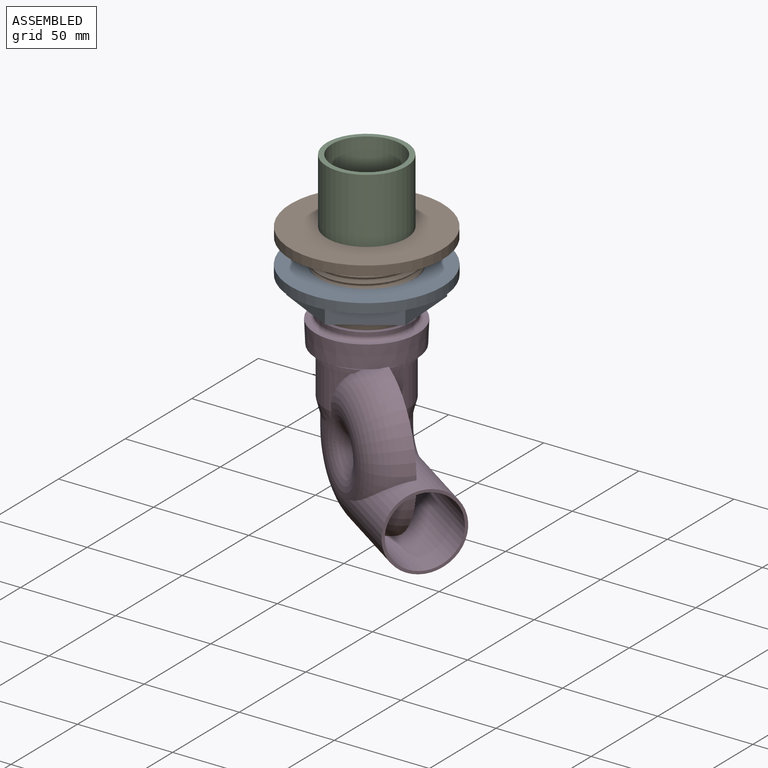
[diagram: assembled view]
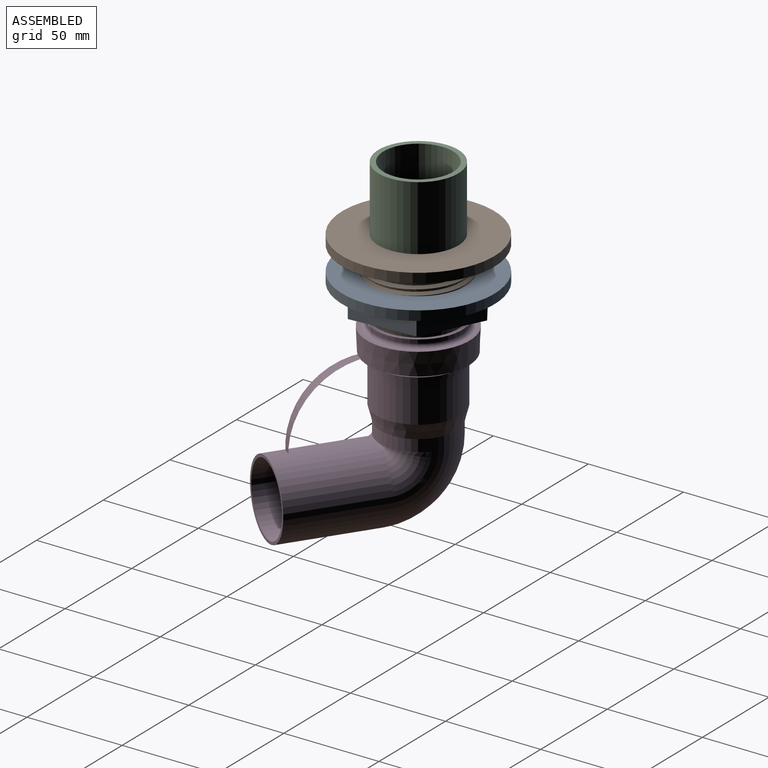
[diagram: assembled view, second angle]
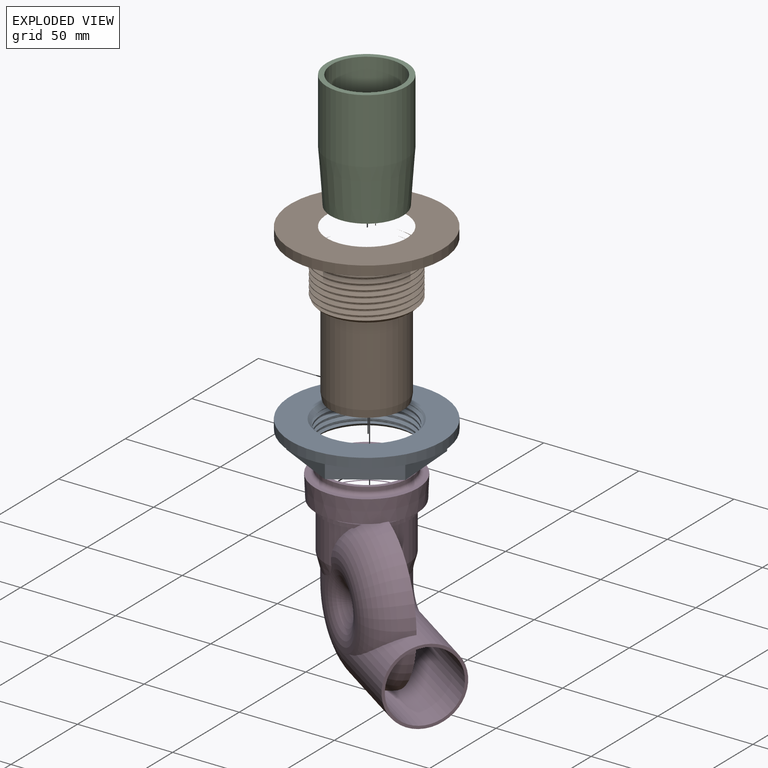
[diagram: exploded view]
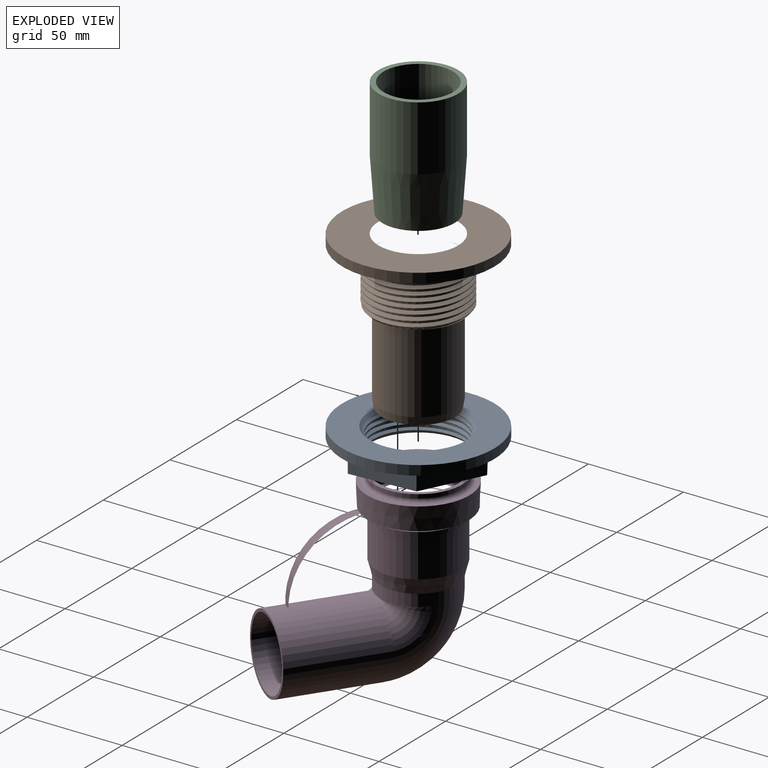
[diagram: exploded view, second angle]
ASSEMBLY  parts=4 mates=3
PART A: 17 faces, bbox 80x80x16.5 mm
  f0: cylinder r=23.5mm len=47mm, axis (0,0,1), area 473.8mm2, adj f1,f2,f3,f15,f16
  f1: cone r=23.5mm half-angle=45deg, axis (0,0,1), area 293.3mm2, adj f0,f2,f12,f14,f15,f16
  f2: cone r=23.5mm half-angle=45deg, axis (0,0,1), area 9.3mm2, adj f0,f1,f16
  f3: cone r=25.5mm half-angle=45deg, axis (0,0,-1), area 302.5mm2, adj f0,f10,f14,f15,f16
  f4: plane 32.19x12.79mm, normal (-0.37,0.93,0), area 346.4mm2, adj f5,f9,f10,f13
  f5: plane 34.28x10mm, normal (-0.99,0.14,0), area 346.4mm2, adj f4,f6,f10,f13
  f6: plane 27.17x21.49mm, normal (-0.62,-0.78,0), area 346.4mm2, adj f5,f7,f10,f13
  f7: plane 32.19x12.79mm, normal (0.37,-0.93,0), area 346.4mm2, adj f6,f8,f10,f13
  f8: plane 34.28x10mm, normal (0.99,-0.14,0), area 346.4mm2, adj f7,f9,f10,f13
  f9: plane 27.17x21.49mm, normal (0.62,0.78,0), area 346.4mm2, adj f4,f8,f10,f13
  f10: plane 68.55x64.39mm, normal (0,0,-1), area 1074.9mm2, adj f3,f4,f5,f6,f7,f8,f9
  f11: cylinder r=40mm len=80mm, axis (0,0,-1), area 1256.6mm2, adj f12,f13
  f12: plane 80x80mm, normal (0,0,1), area 2983.7mm2, adj f1,f11
  f13: plane 80x80mm, normal (0,0,-1), area 1908.9mm2, adj f4,f5,f6,f7,f8,f9,f11
  f14: cylinder r=25mm len=50mm, axis (0,0,-1), area 275.1mm2, adj f1,f3,f15,f16
  f15: bspline ~57.74x50mm, area 1100.9mm2, adj f0,f1,f3,f14
  f16: bspline ~57.74x50mm, area 1100.9mm2, adj f0,f1,f2,f3,f14
PART B: 26 faces, bbox 80x80x82 mm
  f0: cylinder r=25mm len=50mm, axis (0,0,-1), area 338mm2, adj f8,f14,f21,f22,f24
  f1: cylinder r=25mm len=14.06mm, axis (0,0,-1), area 2.1mm2, adj f2,f19,f22
  f2: cylinder r=25mm len=50mm, axis (0,0,-1), area 58.5mm2, adj f1,f3,f20,f22,f24
  f3: cylinder r=25mm len=50mm, axis (0,0,-1), area 58.7mm2, adj f2,f4,f22,f24
  f4: cylinder r=25mm len=50mm, axis (0,0,-1), area 58.9mm2, adj f3,f5,f22,f24
  f5: cylinder r=25mm len=50mm, axis (0,0,-1), area 58.9mm2, adj f4,f6,f22,f24
  f6: cylinder r=25mm len=50mm, axis (0,0,-1), area 58.9mm2, adj f5,f7,f22,f24
  f7: cylinder r=25mm len=50mm, axis (0,0,-1), area 58.8mm2, adj f6,f8,f22,f24
  f8: cylinder r=25mm len=50mm, axis (0,0,-1), area 58.8mm2, adj f0,f7,f22,f24
  f9: plane 38x38mm, normal (0,0,1), area 82mm2, adj f10,f18
  f10: cone r=19mm half-angle=4.1deg, axis (0,0,1), area 3527.5mm2, adj f9,f11
  f11: plane 80x80mm, normal (0,0,1), area 3641.1mm2, adj f10,f12
  f12: cylinder r=40mm len=80mm, axis (0,0,-1), area 1256.6mm2, adj f11,f13
  f13: plane 80x80mm, normal (0,0,-1), area 2563.5mm2, adj f12,f14
  f14: torus R=28mm, axis (0,0,-1), area 772.5mm2, adj f0,f13
  f15: plane 46x46mm, normal (0,0,-1), area 405.3mm2, adj f16,f19
  f16: cylinder r=20mm len=43mm, axis (0,0,-1), area 5403.5mm2, adj f15,f25
  f17: plane 38.59x38.59mm, normal (0,0,-1), area 117.5mm2, adj f18,f25
  f18: cylinder r=18.3mm len=54mm, axis (0,0,-1), area 6209mm2, adj f9,f17
  f19: cone r=23mm half-angle=45deg, axis (0,0,1), area 218.8mm2, adj f1,f15,f20,f22,f23,f24
  f20: cone r=23mm half-angle=45deg, axis (0,0,1), area 0.7mm2, adj f2,f19,f24
  f21: plane 2.63x1.59mm, normal (-0.87,0.5,0), area 2.9mm2, adj f0,f22,f23,f24
  f22: bspline ~57.74x50mm, area 2492.7mm2, adj f0,f1,f2,f3,f4,f5,f6,f7
  f23: cylinder r=23.16mm len=46.32mm, axis (0,0,1), area 733.8mm2, adj f19,f21,f22,f24
  f24: bspline ~57.74x50mm, area 2657.8mm2, adj f0,f2,f3,f4,f5,f6,f7,f8
  f25: cone r=19.29mm half-angle=10deg, axis (0,0,1), area 501.4mm2, adj f16,f17
PART C: 5 faces, bbox 42x42x62 mm
  f0: plane 38.03x38.03mm, normal (0,0,-1), area 83.8mm2, adj f1,f4
  f1: cylinder r=18.3mm len=62mm, axis (0,0,1), area 7128.9mm2, adj f0,f3
  f2: cylinder r=21mm len=42mm, axis (0,0,1), area 4513.8mm2, adj f3,f4
  f3: plane 42x42mm, normal (0,0,1), area 333.4mm2, adj f1,f2
  f4: cone r=19mm half-angle=4.1deg, axis (0,0,1), area 3502.5mm2, adj f0,f2
PART D: 26 faces, bbox 97.1x54.1x98.3 mm
  f0: cone r=23mm half-angle=89.8deg, axis (0,0,-1), area 341.7mm2, adj f1,f17
  f1: cylinder r=23mm len=46mm, axis (0,0,-1), area 1398.6mm2, adj f0,f2
  f2: cone r=21mm half-angle=26.3deg, axis (0,0,-1), area 624.3mm2, adj f1,f3
  f3: cylinder r=21mm len=42mm, axis (0,0,-1), area 34.6mm2, adj f2,f4
  f4: plane 46x46mm, normal (0,0,1), area 276.5mm2, adj f3,f5
  f5: cylinder r=23mm len=46mm, axis (0,0,-1), area 289mm2, adj f4,f6
  f6: torus R=25mm, axis (0,0,-1), area 468.3mm2, adj f5,f7
  f7: plane 54x54mm, normal (0,0,1), area 326.7mm2, adj f6,f8
  f8: cone r=26.5mm half-angle=2.4deg, axis (0,0,1), area 2016.9mm2, adj f7,f9
  f9: plane 53x53mm, normal (0,0,-1), area 685.7mm2, adj f8,f10
  f10: cylinder r=22mm len=44mm, axis (0,0,-1), area 276.5mm2, adj f9,f11
  f11: plane 46x46mm, normal (0,0,1), area 141.4mm2, adj f10,f12
  f12: cylinder r=23mm len=46mm, axis (0,0,-1), area 289mm2, adj f11,f13
  f13: plane 46x46mm, normal (0,0,-1), area 141.4mm2, adj f12,f14
  f14: cylinder r=22mm len=44mm, axis (0,0,-1), area 2902.8mm2, adj f13,f15
  f15: cone r=22mm half-angle=14.5deg, axis (0,0,1), area 1055.6mm2, adj f14,f18
  f16: cone r=18.5mm half-angle=14.2deg, axis (0,0,1), area 922mm2, adj f17,f20
  f17: cone r=20.48mm half-angle=0deg, axis (0,0,1), area 3472.1mm2, adj f0,f16
  f18: cylinder r=20mm len=40mm, axis (0,0,-1), area 786.9mm2, adj f15,f24
  f19: cylinder r=18.5mm len=37mm, axis (0,0,-1), area 787.3mm2, adj f20,f21
  f20: plane 37.26x37.26mm, normal (0,0,1), area 15.2mm2, adj f16,f19
  f21: torus R=20mm, axis (0,-1,0), area 3651.8mm2, adj f19,f22
  f22: cylinder r=18.5mm len=50mm, axis (1,0,0), area 5811.9mm2, adj f21,f23
  f23: plane 40x40mm, normal (1,0,0), area 181.4mm2, adj f22,f25
  f24: torus R=20mm, axis (0,-1,0), area 3947.8mm2, adj f18,f25
  f25: cylinder r=20mm len=50mm, axis (1,0,0), area 6283.2mm2, adj f23,f24
PLACE A rot(axis=(0,0,1),132deg) t=(21.14,15.53,149)mm
PLACE B rot(axis=(0,0,-1),124deg) t=(21.14,15.53,69.08)mm
PLACE C t=(21.14,15.53,22.07)mm
PLACE D rot(axis=(0,0,-1),34deg) t=(21.14,15.53,0.53)mm
MATE cylindrical B.f0 <-> C.f1  axis (0,0,1) through (21.14,15.53,77.87)mm
MATE cylindrical D.f0 <-> B.f0  axis (0,0,-1) through (21.14,15.53,21.77)mm
MATE cylindrical B.f0 <-> A.f0  axis (0,0,-1) through (21.14,15.53,56.87)mm
